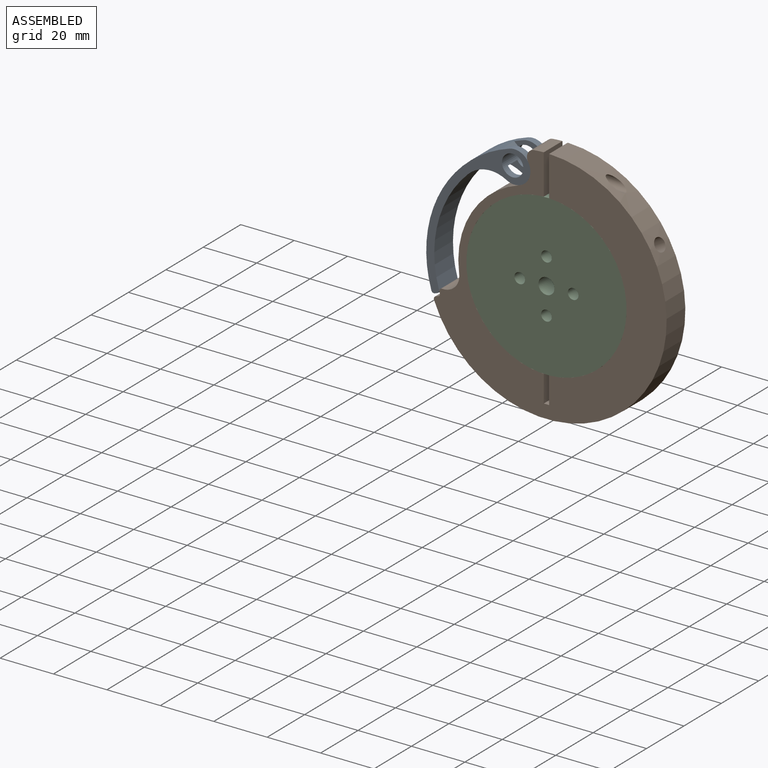
[diagram: assembled view]
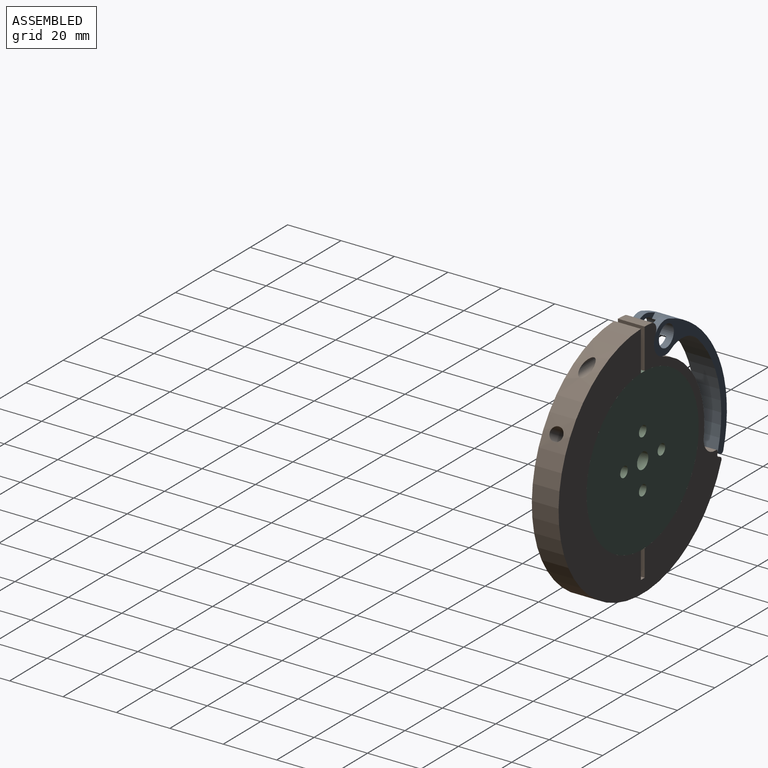
[diagram: assembled view, second angle]
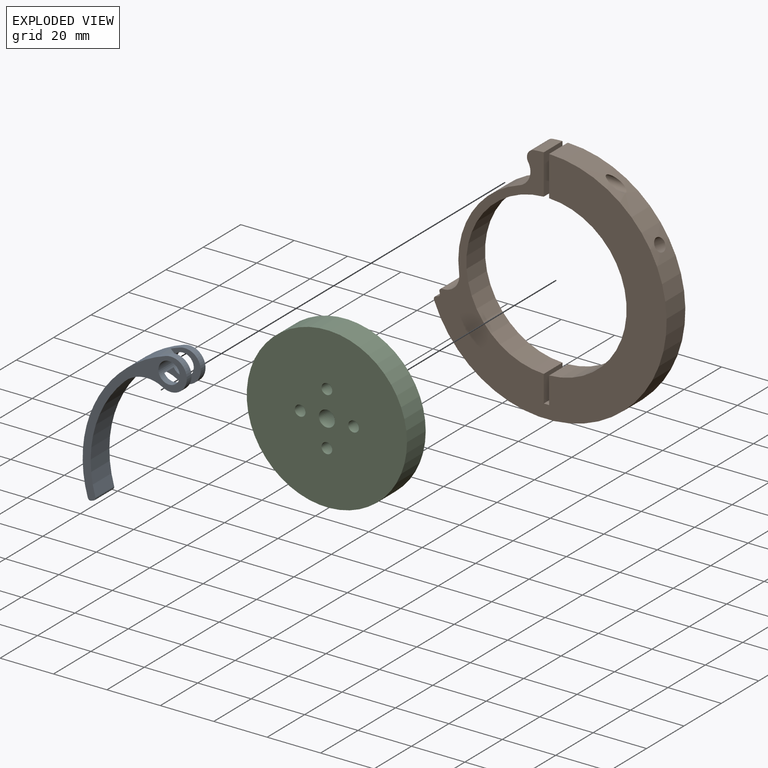
[diagram: exploded view]
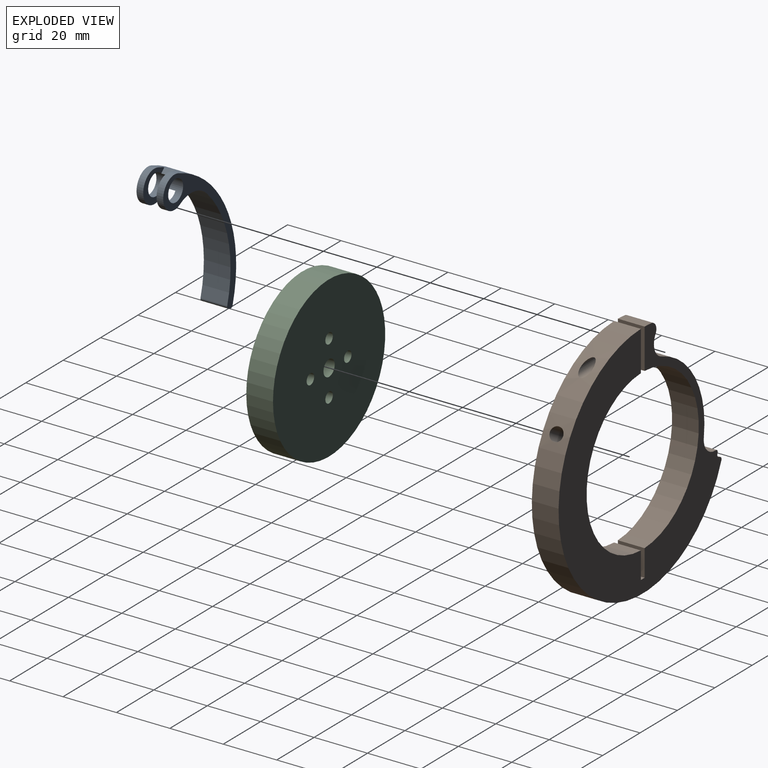
[diagram: exploded view, second angle]
ASSEMBLY  parts=3 mates=5
PART A: 16 faces, bbox 39x10x56.8 mm
  f0: cylinder r=6mm len=12mm, axis (0,-1,0), area 59.6mm2, adj f1,f3,f7,f14
  f1: cylinder r=45mm len=55.8mm, axis (0,-1,0), area 679.3mm2, adj f0,f4,f7,f8,f9,f11,f14,f15
  f2: cylinder r=4mm len=10mm, axis (0,-1,0), area 150.1mm2, adj f7,f8,f11,f12,f14,f15
  f3: cylinder r=12mm len=14.33mm, axis (0,-1,0), area 130.8mm2, adj f0,f4,f6,f7,f8,f13,f14,f15
  f4: cylinder r=6mm len=12mm, axis (0,-1,0), area 59.6mm2, adj f1,f3,f8,f15
  f5: plane 10x0.94mm, normal (-0.33,0,0.94), area 10mm2, adj f7,f8,f9,f10
  f6: cylinder r=42mm len=42.15mm, axis (0,-1,0), area 457.8mm2, adj f3,f7,f8,f10
  f7: plane 56.8x39mm, normal (0,1,0), area 279mm2, adj f0,f1,f2,f3,f5,f6,f9,f10
  f8: plane 56.8x39mm, normal (0,-1,0), area 279mm2, adj f1,f2,f3,f4,f5,f6,f9,f10
  f9: cylinder r=1mm len=10mm, axis (0,-1,0), area 16.2mm2, adj f1,f5,f7,f8
  f10: cylinder r=1mm len=10mm, axis (0,-1,0), area 15.2mm2, adj f5,f6,f7,f8
  f11: plane 5x1.67mm, normal (-0.66,0,-0.75), area 11.1mm2, adj f1,f2,f14,f15
  f12: plane 5x3.51mm, normal (-0.48,0,0.88), area 20mm2, adj f2,f13,f14,f15
  f13: cylinder r=8mm len=5mm, axis (0,-1,0), area 1mm2, adj f3,f12,f14,f15
  f14: plane 13.67x12mm, normal (0,-1,0), area 59.4mm2, adj f0,f1,f2,f3,f11,f12,f13
  f15: plane 13.67x12mm, normal (0,1,0), area 59.4mm2, adj f1,f2,f3,f4,f11,f12,f13
PART B: 23 faces, bbox 87.2x10x90 mm
  f0: cylinder r=45mm len=89.99mm, axis (0,1,0), area 1900.9mm2, adj f5,f15,f16,f19,f20,f22
  f1: cylinder r=33mm len=35.95mm, axis (0,1,0), area 460.8mm2, adj f2,f14,f15,f16
  f2: cylinder r=6mm len=10mm, axis (0,1,0), area 106.5mm2, adj f1,f15,f16,f17
  f3: cylinder r=42mm len=10mm, axis (0,1,0), area 3.7mm2, adj f15,f16,f17,f18
  f4: plane 10x0.94mm, normal (0.33,0,-0.94), area 10mm2, adj f15,f16,f18,f19
  f5: plane 15.01x10mm, normal (1,0,0), area 136.2mm2, adj f0,f6,f15,f16,f22
  f6: cylinder r=30mm len=59.97mm, axis (0,1,0), area 922.5mm2, adj f5,f7,f15,f16
  f7: plane 10.02x10mm, normal (1,0,0), area 100.2mm2, adj f6,f8,f15,f16
  f8: plane 10x2mm, normal (0,0,-1), area 20mm2, adj f7,f9,f15,f16
  f9: plane 10.02x10mm, normal (-1,0,0), area 100.2mm2, adj f8,f10,f15,f16
  f10: cylinder r=30mm len=59.97mm, axis (0,1,0), area 922.5mm2, adj f9,f11,f15,f16
  f11: plane 15.01x10mm, normal (-1,0,0), area 150.1mm2, adj f10,f12,f15,f16
  f12: cylinder r=45mm len=10mm, axis (0,1,0), area 36.2mm2, adj f11,f13,f15,f16
  f13: cylinder r=3mm len=10mm, axis (0,1,0), area 60.4mm2, adj f12,f14,f15,f16
  f14: cylinder r=6mm len=10mm, axis (0,1,0), area 108.2mm2, adj f1,f13,f15,f16
  f15: plane 89.99x87.17mm, normal (0,-1,0), area 2693.9mm2, adj f0,f1,f2,f3,f4,f5,f6,f7
  f16: plane 89.99x87.17mm, normal (0,1,0), area 2693.9mm2, adj f0,f1,f2,f3,f4,f5,f6,f7
  f17: cylinder r=1mm len=10mm, axis (0,-1,0), area 19.4mm2, adj f2,f3,f15,f16
  f18: cylinder r=1mm len=10mm, axis (0,1,0), area 15.5mm2, adj f3,f4,f15,f16
  f19: cylinder r=1mm len=10mm, axis (0,1,0), area 15.9mm2, adj f0,f4,f15,f16
  f20: cylinder r=2.5mm len=12.95mm, axis (-0.87,0,-0.5), area 189mm2, adj f0,f21
  f21: cone r=0mm half-angle=59deg, axis (-0.87,0,-0.5), area 22.9mm2, adj f20
  f22: cylinder r=2.1mm len=25.13mm, axis (1,0,0), area 286.4mm2, adj f0,f5
PART C: 8 faces, bbox 60x10x60 mm
  f0: cylinder r=30mm len=60mm, axis (0,1,0), area 1885mm2, adj f1,f2
  f1: plane 60x60mm, normal (0,-1,0), area 2748.9mm2, adj f0,f3,f4,f5,f6,f7
  f2: plane 60x60mm, normal (0,1,0), area 2748.9mm2, adj f0,f3,f4,f5,f6,f7
  f3: cylinder r=2mm len=10mm, axis (0,1,0), area 125.7mm2, adj f1,f2
  f4: cylinder r=2mm len=10mm, axis (0,1,0), area 125.7mm2, adj f1,f2
  f5: cylinder r=2mm len=10mm, axis (0,1,0), area 125.7mm2, adj f1,f2
  f6: cylinder r=2mm len=10mm, axis (0,1,0), area 125.7mm2, adj f1,f2
  f7: cylinder r=3mm len=10mm, axis (0,1,0), area 188.5mm2, adj f1,f2
PLACE A rot(axis=(0,1,0),180deg) t=(0,0,0)mm
PLACE B rot(axis=(0,1,0),180deg) t=(0,0,0)mm
PLACE C rot(axis=(0,-1,0),90deg) t=(0,0,0)mm
MATE cylindrical A.f0 <-> B.f14  axis (0,-1,0) through (-12,-3.75,37.11)mm
MATE planar B.f15 <-> A.f8  axis (0,-1,0) through (8.7,-5,-5.52)mm
MATE cylindrical B.f6 <-> C.f0  axis (0,1,0) through (0,0,0)mm
MATE planar C.f0 <-> B.f15  axis (0,-1,0) through (0,-5,0)mm
MATE cylindrical A.f1 <-> B.f0  axis (0,-1,0) through (0,0,0)mm
